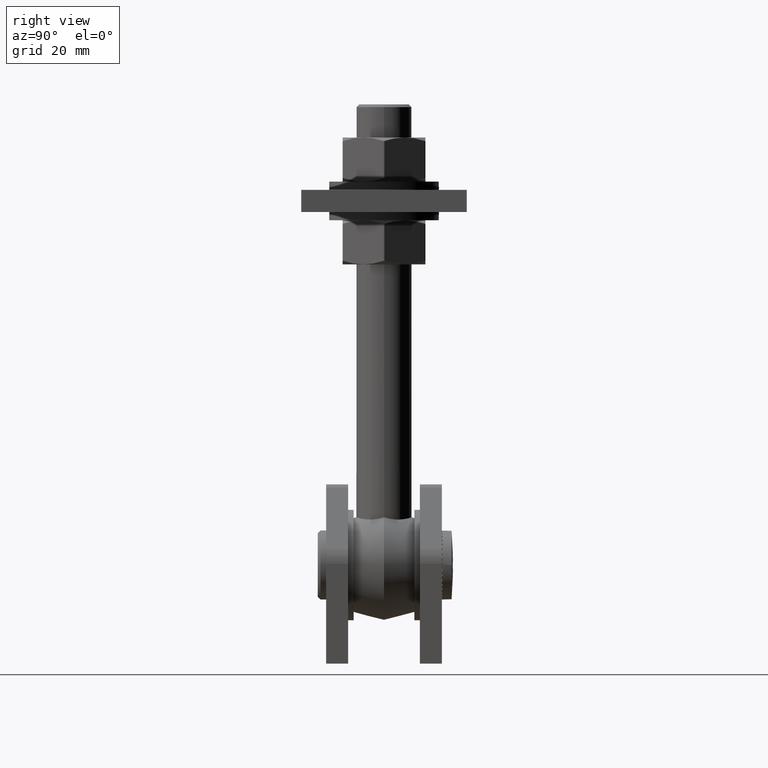
[diagram: clean part render]
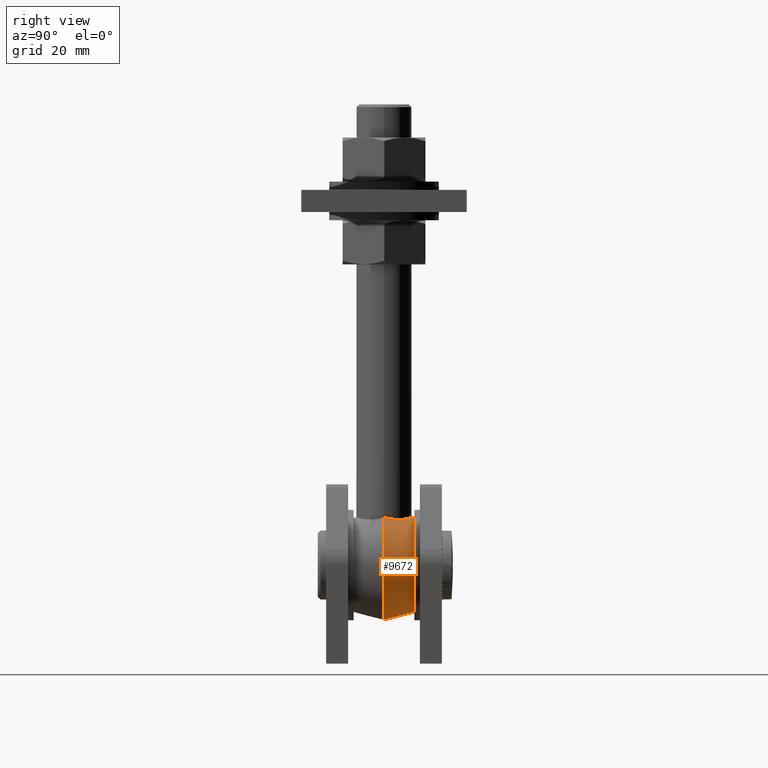
[diagram: same view with one face highlighted and labeled with its STEP entity id]
A machine part, right view. The second image highlights one B-rep face of the part: STEP entity #9672.
In plain terms, the highlighted conical surface has half-angle 15.255 deg.
Its self-contained STEP definition (entity closure, byte-faithful):
#51 = CARTESIAN_POINT ( 'NONE',  ( -7.541143778264447484, 6.575633526374915050, 16.57262114895341654 ) ) ;
#125 = CARTESIAN_POINT ( 'NONE',  ( 2.598302276428677615, 9.662134220516703564, 17.17226001928840518 ) ) ;
#300 = CARTESIAN_POINT ( 'NONE',  ( 1.315120860401331804, 9.918598933476687307, 17.24795893741972819 ) ) ;
#1896 = CARTESIAN_POINT ( 'NONE',  ( 3.227106875408480846, 9.470680737395053228, 17.11839933327910757 ) ) ;
#2150 = CARTESIAN_POINT ( 'NONE',  ( 9.009806786077430019, 4.387856314192351448, 16.50528932179477692 ) ) ;
#2231 = CARTESIAN_POINT ( 'NONE',  ( -5.030207193969456370, 8.667681731379230925, 16.91217789066940469 ) ) ;
#2616 = VERTEX_POINT ( 'NONE', #17466 ) ;
#2858 = DIRECTION ( 'NONE',  ( 0.000000000000000000, 0.000000000000000000, -1.000000000000000000 ) ) ;
#3124 = CARTESIAN_POINT ( 'NONE',  ( 0.000000000000000000, 11.00000000000000178, 17.00000000000000000 ) ) ;
#3193 = EDGE_LOOP ( 'NONE', ( #6146 ) ) ;
#3719 = CARTESIAN_POINT ( 'NONE',  ( -9.488900497698832481, 3.173133368510841823, 16.61617165698505971 ) ) ;
#3801 = CARTESIAN_POINT ( 'NONE',  ( -3.236880436023263918, 9.467420657957287489, 17.11749563880219682 ) ) ;
#3966 = FACE_BOUND ( 'NONE', #3193, .T. ) ;
#4057 = CARTESIAN_POINT ( 'NONE',  ( 2.280698234392232848, 9.741942112784212071, 17.19548567137182005 ) ) ;
#5483 = CARTESIAN_POINT ( 'NONE',  ( 10.00000000000000000, 1.715241032878090829E-15, 17.32050807568877460 ) ) ;
#5648 = CARTESIAN_POINT ( 'NONE',  ( 0.6606217280623581933, 9.983572838069521893, 17.26767458863027116 ) ) ;
#5723 = CARTESIAN_POINT ( 'NONE',  ( 1.639107490482410778, 9.870174628639700742, 17.23333391638246681 ) ) ;
#5807 = CARTESIAN_POINT ( 'NONE',  ( 7.552057554879096024, 6.587593667447519508, 16.56897396855355709 ) ) ;
#6146 = ORIENTED_EDGE ( 'NONE', *, *, #23674, .F. ) ;
#7004 = AXIS2_PLACEMENT_3D ( 'NONE', #18173, #14367, #2858 ) ;
#7148 = CARTESIAN_POINT ( 'NONE',  ( 10.00000000000000000, 0.6348035999347011460, 17.12059678697705323 ) ) ;
#7481 = DIRECTION ( 'NONE',  ( -4.931294844412448686E-48, 1.000000000000000000, 2.013031482287183409E-63 ) ) ;
#7551 = CARTESIAN_POINT ( 'NONE',  ( -3.548118843663757183, 9.355118314788979816, 17.08672019089548400 ) ) ;
#7570 = EDGE_CURVE ( 'NONE', #2616, #22571, #18119, .T. ) ;
#7625 = CARTESIAN_POINT ( 'NONE',  ( 4.451770471811712149, 8.978602354751371806, 16.98819157037278771 ) ) ;
#7707 = CARTESIAN_POINT ( 'NONE',  ( -9.379978053261531556, 3.481774409196131348, 16.58143049093521171 ) ) ;
#7865 = CARTESIAN_POINT ( 'NONE',  ( -5.848344541794101126, 8.118176449988874666, 16.79911447806789937 ) ) ;
#8531 = EDGE_LOOP ( 'NONE', ( #19426, #10080 ) ) ;
#9459 = CARTESIAN_POINT ( 'NONE',  ( -2.604065135909635842, 9.660656998349880453, 17.17183131721475675 ) ) ;
#9535 = CARTESIAN_POINT ( 'NONE',  ( 3.539973602093863470, 9.358257158311529267, 17.08756213205617058 ) ) ;
#9619 = CARTESIAN_POINT ( 'NONE',  ( -9.940081217375094980, 1.270371214191554632, 16.95458548380910102 ) ) ;
#9672 = ADVANCED_FACE ( 'NONE', ( #3966, #11701 ), #13506, .T. ) ;
#9776 = CARTESIAN_POINT ( 'NONE',  ( -6.861814362142485635, 7.281629061594009578, 16.65752743126208912 ) ) ;
#10080 = ORIENTED_EDGE ( 'NONE', *, *, #10439, .F. ) ;
#10439 = EDGE_CURVE ( 'NONE', #2616, #22571, #14240, .T. ) ;
#11373 = CARTESIAN_POINT ( 'NONE',  ( -9.676767397169971474, 2.543261836825757349, 16.70628860367043700 ) ) ;
#11455 = CARTESIAN_POINT ( 'NONE',  ( -6.114311408671186499, 7.919776692471264035, 16.76141364462837657 ) ) ;
#11617 = CARTESIAN_POINT ( 'NONE',  ( -9.755019156617558806, 2.223592962187403099, 16.76157574311282517 ) ) ;
#11701 = FACE_OUTER_BOUND ( 'NONE', #8531, .T. ) ;
#11704 = CARTESIAN_POINT ( 'NONE',  ( 9.505604731175541389, 3.173858858093382640, 16.60739228548642998 ) ) ;
#13288 = CARTESIAN_POINT ( 'NONE',  ( -2.285066148723421176, 9.740945199604142957, 17.19519411348350602 ) ) ;
#13467 = CARTESIAN_POINT ( 'NONE',  ( 9.940139474985747015, 1.268677335695095998, 16.95508568898727830 ) ) ;
#13506 = CONICAL_SURFACE ( 'NONE', #7004, 20.00000000000000000, 0.2662520491509253184 ) ;
#13631 = CARTESIAN_POINT ( 'NONE',  ( 7.969270702384876337, 6.077205366072448101, 16.52431990363968239 ) ) ;
#14240 = B_SPLINE_CURVE_WITH_KNOTS ( 'NONE', 3,
 ( #5483, #7148, #13467, #20939, #11704, #2150, #19280, #13631, #5807, #19365, #17191, #24733, #7625, #9535, #1896, #125, #4057, #5723, #300, #5648, #22888, #22801, #21097, #13288, #9459, #3801, #7551, #15255, #2231, #7865, #11455, #17438, #9776, #19034, #51, #19128, #15488, #17274, #19201, #7707, #3719, #11373, #11617, #9619, #17110, #22972 ),
 .UNSPECIFIED., .F., .F.,
 ( 4, 2, 2, 2, 2, 2, 2, 2, 2, 2, 2, 2, 2, 2, 2, 2, 2, 2, 2, 2, 2, 2, 4 ),
 ( 2.068959819484759283E-07, 0.001970281942956901740, 0.003940356989931855132, 0.005910432036906810259, 0.007880507083881766253, 0.009850582130856721380, 0.01182065717783167651, 0.01280569470131915320, 0.01379073222480662990, 0.01477576974829410660, 0.01576080727178158156, 0.01773088231875653495, 0.01871591984224401164, 0.01970095736573148834, 0.02167103241270644173, 0.02265606993619391843, 0.02364110745968139513, 0.02462614498316887182, 0.02561118250665634852, 0.02758125755363130191, 0.02856629507711877861, 0.02955133260060625530, 0.03152140764758121216 ),
 .UNSPECIFIED. ) ;
#14367 = DIRECTION ( 'NONE',  ( 4.931294844412448686E-48, -1.000000000000000000, -2.013031482287183409E-63 ) ) ;
#15255 = CARTESIAN_POINT ( 'NONE',  ( -4.455410200496830342, 8.976573065215760039, 16.98770186927259118 ) ) ;
#15488 = CARTESIAN_POINT ( 'NONE',  ( -8.153152579458359028, 5.799688211069687682, 16.51625436239064726 ) ) ;
#16133 = CIRCLE ( 'NONE', #21100, 17.00000000000000000 ) ;
#16346 = DIRECTION ( 'NONE',  ( -4.931294844412448686E-48, 1.000000000000000000, 2.013031482287183409E-63 ) ) ;
#17110 = CARTESIAN_POINT ( 'NONE',  ( -9.999999999999998224, 0.6351725604654764323, 17.12048059454335203 ) ) ;
#17191 = CARTESIAN_POINT ( 'NONE',  ( 6.113050587191374063, 7.940936465670362487, 16.76255947576708749 ) ) ;
#17274 = CARTESIAN_POINT ( 'NONE',  ( -8.703368358683851724, 4.969154911175271749, 16.49215128929300533 ) ) ;
#17394 = CARTESIAN_POINT ( 'NONE',  ( -10.00000000000000000, 1.734723475976807094E-15, 17.32050807568877460 ) ) ;
#17438 = CARTESIAN_POINT ( 'NONE',  ( -6.620337797070860120, 7.501919375299408443, 16.69071752195667102 ) ) ;
#17466 = CARTESIAN_POINT ( 'NONE',  ( 10.00000000000000000, 1.715241032878090829E-15, 17.32050807568877460 ) ) ;
#18119 = CIRCLE ( 'NONE', #20108, 20.00000000000000000 ) ;
#18173 = CARTESIAN_POINT ( 'NONE',  ( 0.000000000000000000, 1.734723475976807094E-15, -9.184850993605147944E-16 ) ) ;
#19034 = CARTESIAN_POINT ( 'NONE',  ( -7.322217407229917541, 6.818485929619162889, 16.59848153085573585 ) ) ;
#19128 = CARTESIAN_POINT ( 'NONE',  ( -7.956242606182611254, 6.066795640962942215, 16.53152442811023803 ) ) ;
#19131 = CARTESIAN_POINT ( 'NONE',  ( 0.000000000000000000, 11.00000000000000178, -9.184850993605147944E-16 ) ) ;
#19201 = CARTESIAN_POINT ( 'NONE',  ( -9.009074844332491949, 4.389024460403439853, 16.50532141224294591 ) ) ;
#19280 = CARTESIAN_POINT ( 'NONE',  ( 8.703416276451305222, 4.969129270617969496, 16.49213889162195201 ) ) ;
#19365 = CARTESIAN_POINT ( 'NONE',  ( 6.627173734391602622, 7.517348730356412823, 16.68765080809315293 ) ) ;
#19426 = ORIENTED_EDGE ( 'NONE', *, *, #7570, .T. ) ;
#20108 = AXIS2_PLACEMENT_3D ( 'NONE', #24312, #16346, #20938 ) ;
#20938 = DIRECTION ( 'NONE',  ( 0.000000000000000000, 0.000000000000000000, 1.000000000000000000 ) ) ;
#20939 = CARTESIAN_POINT ( 'NONE',  ( 9.694836938361428125, 2.534965818873931021, 16.69837228102763760 ) ) ;
#21097 = CARTESIAN_POINT ( 'NONE',  ( -1.320415377235104160, 9.934116265400344759, 17.25220117525524444 ) ) ;
#21100 = AXIS2_PLACEMENT_3D ( 'NONE', #19131, #7481, #22657 ) ;
#21814 = VERTEX_POINT ( 'NONE', #3124 ) ;
#22571 = VERTEX_POINT ( 'NONE', #17394 ) ;
#22657 = DIRECTION ( 'NONE',  ( 0.000000000000000000, 0.000000000000000000, 1.000000000000000000 ) ) ;
#22801 = CARTESIAN_POINT ( 'NONE',  ( -0.6671754992828466957, 9.999778545406007524, 17.27265945888726151 ) ) ;
#22888 = CARTESIAN_POINT ( 'NONE',  ( 0.3285963743000183679, 10.00010989683604912, 17.27276092534345864 ) ) ;
#22972 = CARTESIAN_POINT ( 'NONE',  ( -10.00000000000000000, 1.734723475976807094E-15, 17.32050807568877460 ) ) ;
#23674 = EDGE_CURVE ( 'NONE', #21814, #21814, #16133, .T. ) ;
#24312 = CARTESIAN_POINT ( 'NONE',  ( 0.000000000000000000, 1.734723475976807094E-15, -9.184850993605147944E-16 ) ) ;
#24733 = CARTESIAN_POINT ( 'NONE',  ( 5.026540163907832870, 8.669587845681913763, 16.91265802796622353 ) ) ;